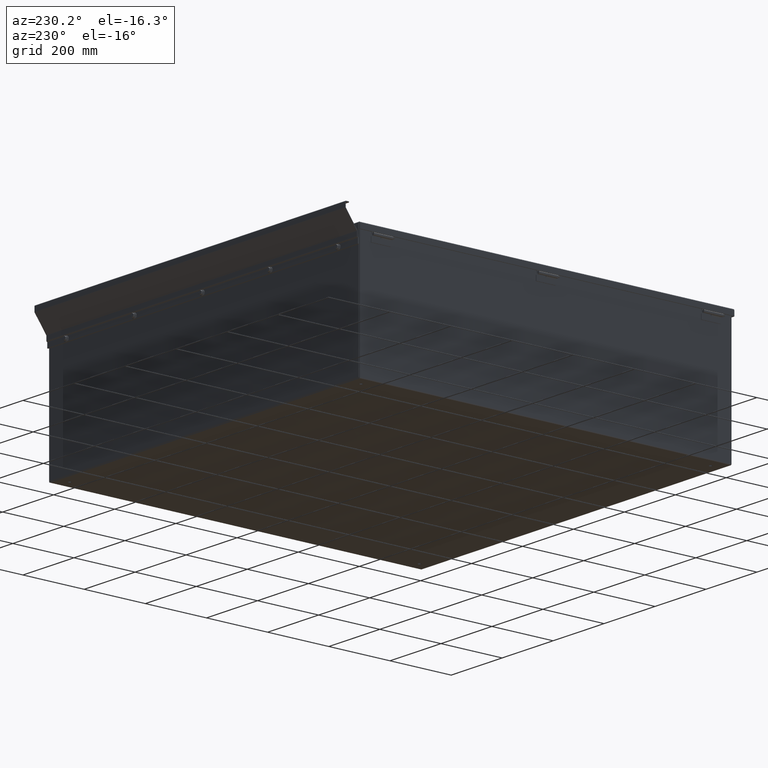
[diagram: clean part render]
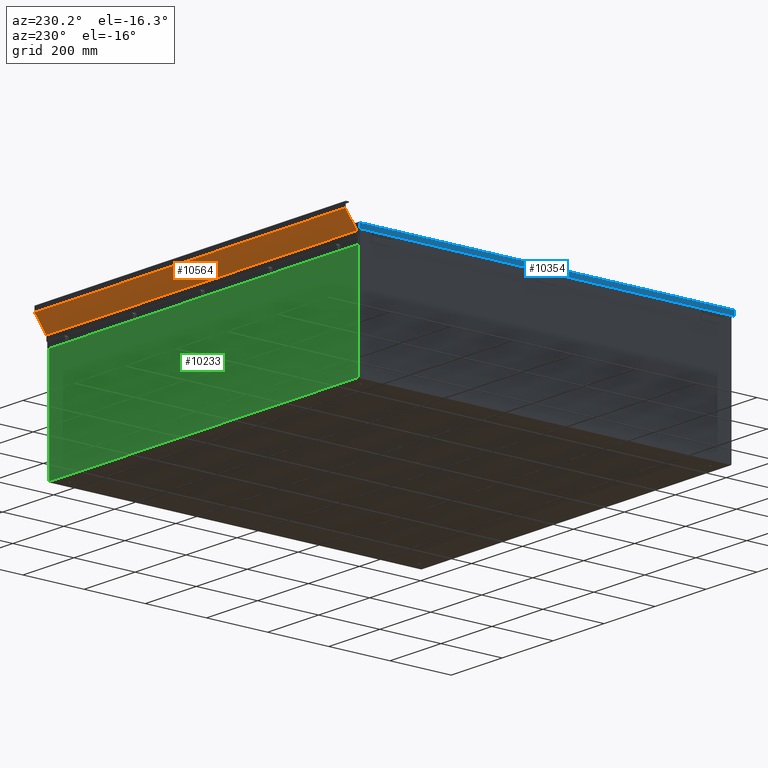
[diagram: same view with three faces highlighted in distinct colors, each labeled with its STEP entity id]
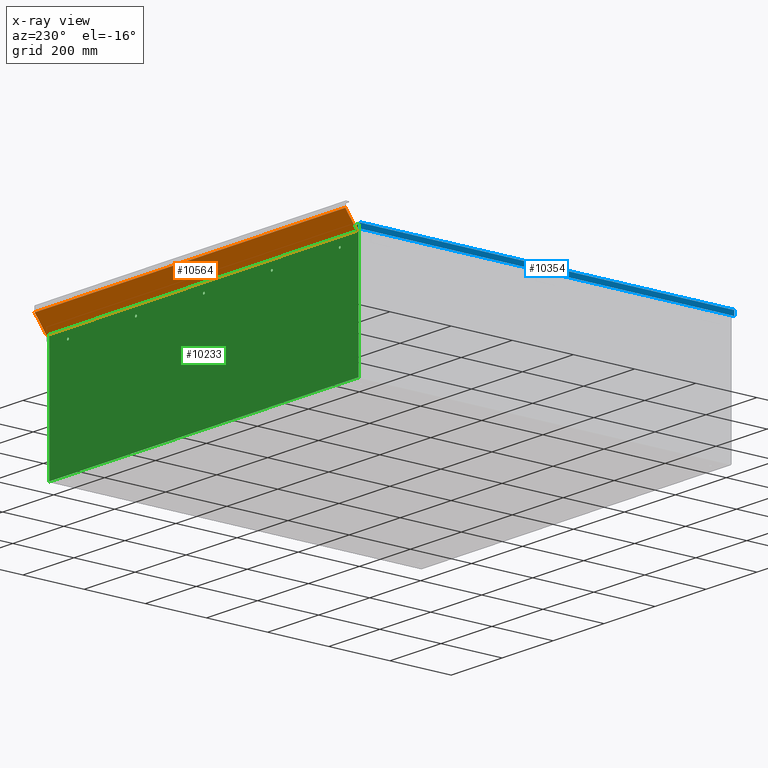
[diagram: x-ray of the same camera — body ghosted, the three highlighted faces saturated]
A machine part, auxiliary view with three faces highlighted in distinct colors.
The next image is the same camera in x-ray (body ghosted, the three faces saturated) — at least one of them is partly hidden behind the body in this view.
Their STEP definitions:

[orange] entity #10564 — the highlighted planar face has unit normal (0, 0.809, -0.5878).
#1122=PLANE($,#11501);
#1613=FACE_OUTER_BOUND($,#2342,.T.);
#2342=EDGE_LOOP($,(#8748,#8749,#8750,#8751));
#3679=LINE($,#17137,#4475);
#3705=LINE($,#17225,#4501);
#3720=LINE($,#17282,#4516);
#3721=LINE($,#17284,#4517);
#4475=VECTOR($,#13767,2.55660440394295);
#4501=VECTOR($,#13835,2.55660440394269);
#4516=VECTOR($,#13910,48.);
#4517=VECTOR($,#13913,48.);
#5201=VERTEX_POINT($,#17134);
#5202=VERTEX_POINT($,#17136);
#5242=VERTEX_POINT($,#17222);
#5243=VERTEX_POINT($,#17224);
#6405=EDGE_CURVE($,#5202,#5201,#3679,.T.);
#6449=EDGE_CURVE($,#5243,#5242,#3705,.T.);
#6476=EDGE_CURVE($,#5242,#5202,#3720,.T.);
#6477=EDGE_CURVE($,#5243,#5201,#3721,.T.);
#8748=ORIENTED_EDGE($,*,*,#6476,.T.);
#8749=ORIENTED_EDGE($,*,*,#6405,.T.);
#8750=ORIENTED_EDGE($,*,*,#6477,.F.);
#8751=ORIENTED_EDGE($,*,*,#6449,.T.);
#10564=ADVANCED_FACE($,(#1613),#1122,.T.);
#11501=AXIS2_PLACEMENT_3D($,#17283,#13911,#13912);
#13767=DIRECTION($,(-7.60050248765501E-017,0.587785252292473,0.809016994374947));
#13835=DIRECTION($,(7.60050248765501E-017,-0.587785252292473,-0.809016994374947));
#13910=DIRECTION($,(-1.,-1.28678251520917E-016,8.6604727863408E-019));
#13911=DIRECTION('center_axis',(-1.04611942105045E-016,0.809016994374947,
-0.587785252292473));
#13912=DIRECTION('ref_axis',(-1.,0.,2.8199664825479E-016));
#13913=DIRECTION($,(-1.,1.7391746430746E-015,5.61654742011281E-015));
#17134=CARTESIAN_POINT('',(-7.44052438222396E-018,0.542399038657958,-0.667066599775276));
#17136=CARTESIAN_POINT('',(1.98464307889726E-016,-0.9603353259257,-2.73540301045896));
#17137=CARTESIAN_POINT($,(2.72972341708475E-017,-0.980436287267742,-2.76306961023424));
#17222=CARTESIAN_POINT('',(48.,-0.960335325925694,-2.73540301045896));
#17224=CARTESIAN_POINT('',(48.,0.542399038657805,-0.667066599775495));
#17225=CARTESIAN_POINT($,(48.,-0.980436287267736,-2.76306961023424));
#17282=CARTESIAN_POINT($,(24.,-0.960335325925696,-2.73540301045896));
#17283=CARTESIAN_POINT('Origin',(-1.72215956130097E-016,0.5625,-0.6394));
#17284=CARTESIAN_POINT($,(-1.76297162242991E-016,0.542399038657958,-0.667066599775276));

[blue] entity #10354 — the highlighted planar face has unit normal (-1, -0, -0).
#973=PLANE($,#11148);
#1416=FACE_OUTER_BOUND($,#2074,.T.);
#2074=EDGE_LOOP($,(#7794,#7795,#7796,#7797));
#3380=LINE($,#16088,#4176);
#3386=LINE($,#16115,#4182);
#3390=LINE($,#16175,#4186);
#3392=LINE($,#16178,#4188);
#4176=VECTOR($,#12856,48.1655029130879);
#4182=VECTOR($,#12866,0.62505);
#4186=VECTOR($,#12872,0.62505);
#4188=VECTOR($,#12876,48.1655029130879);
#4921=VERTEX_POINT($,#16086);
#4922=VERTEX_POINT($,#16087);
#4927=VERTEX_POINT($,#16114);
#4928=VERTEX_POINT($,#16174);
#5977=EDGE_CURVE($,#4921,#4922,#3380,.T.);
#5985=EDGE_CURVE($,#4927,#4922,#3386,.T.);
#5991=EDGE_CURVE($,#4921,#4928,#3390,.T.);
#5993=EDGE_CURVE($,#4928,#4927,#3392,.T.);
#7794=ORIENTED_EDGE($,*,*,#5977,.T.);
#7795=ORIENTED_EDGE($,*,*,#5985,.F.);
#7796=ORIENTED_EDGE($,*,*,#5993,.F.);
#7797=ORIENTED_EDGE($,*,*,#5991,.F.);
#10354=ADVANCED_FACE($,(#1416),#973,.T.);
#11148=AXIS2_PLACEMENT_3D($,#16179,#12877,#12878);
#12856=DIRECTION($,(1.3406546069894E-016,1.,1.08993811467719E-030));
#12866=DIRECTION($,(-2.30314065722459E-014,1.99680416634069E-030,1.));
#12872=DIRECTION($,(2.30314065722459E-014,-1.99680416634069E-030,-1.));
#12876=DIRECTION($,(1.448206362859E-016,1.,-2.86622998698953E-017));
#12877=DIRECTION('center_axis',(-1.,1.3406546069894E-016,-2.30098112043765E-014));
#12878=DIRECTION('ref_axis',(-2.25597318603832E-014,8.67414680778991E-017,
1.));
#16086=CARTESIAN_POINT('',(-12.109375,-24.082751456544,-0.0312500000000051));
#16087=CARTESIAN_POINT('',(-12.109375,24.082751456544,-0.0312500000000051));
#16088=CARTESIAN_POINT($,(-12.109375,-8.2200658122212E-015,-0.0312500000000051));
#16114=CARTESIAN_POINT('',(-12.109375,24.082751456544,-0.656300000000007));
#16115=CARTESIAN_POINT($,(-12.109375,24.082751456544,-0.0312500000000051));
#16174=CARTESIAN_POINT('',(-12.109375,-24.082751456544,-0.656300000000004));
#16175=CARTESIAN_POINT($,(-12.109375,-24.082751456544,-0.0312500000000065));
#16178=CARTESIAN_POINT($,(-12.109375,-24.082751456544,-0.656300000000004));
#16179=CARTESIAN_POINT('Origin',(-12.109375,-5.26485469254245E-015,-0.304421465270819));

[green] entity #10233 — the highlighted planar face has unit normal (0, -1, -0).
#644=FACE_BOUND($,#1921,.T.);
#645=FACE_BOUND($,#1922,.T.);
#646=FACE_BOUND($,#1923,.T.);
#647=FACE_BOUND($,#1924,.T.);
#648=FACE_BOUND($,#1925,.T.);
#649=FACE_BOUND($,#1926,.T.);
#894=PLANE($,#10978);
#1921=EDGE_LOOP($,(#7274));
#1922=EDGE_LOOP($,(#7275));
#1923=EDGE_LOOP($,(#7276));
#1924=EDGE_LOOP($,(#7277));
#1925=EDGE_LOOP($,(#7278));
#1926=EDGE_LOOP($,(#7279,#7280,#7281,#7282));
#2670=CIRCLE($,#10951,0.140625);
#2672=CIRCLE($,#10954,0.140625);
#2674=CIRCLE($,#10957,0.140625);
#2676=CIRCLE($,#10960,0.140625);
#2678=CIRCLE($,#10963,0.140625);
#3183=LINE($,#15346,#3979);
#3198=LINE($,#15382,#3994);
#3201=LINE($,#15388,#3997);
#3202=LINE($,#15389,#3998);
#3979=VECTOR($,#12303,47.8126);
#3994=VECTOR($,#12342,15.78135);
#3997=VECTOR($,#12347,15.78135);
#3998=VECTOR($,#12348,47.8126);
#4747=VERTEX_POINT($,#15317);
#4749=VERTEX_POINT($,#15322);
#4751=VERTEX_POINT($,#15327);
#4753=VERTEX_POINT($,#15332);
#4755=VERTEX_POINT($,#15337);
#4758=VERTEX_POINT($,#15343);
#4759=VERTEX_POINT($,#15345);
#4768=VERTEX_POINT($,#15381);
#4770=VERTEX_POINT($,#15387);
#5703=EDGE_CURVE($,#4747,#4747,#2670,.T.);
#5705=EDGE_CURVE($,#4749,#4749,#2672,.T.);
#5707=EDGE_CURVE($,#4751,#4751,#2674,.T.);
#5709=EDGE_CURVE($,#4753,#4753,#2676,.T.);
#5711=EDGE_CURVE($,#4755,#4755,#2678,.T.);
#5714=EDGE_CURVE($,#4759,#4758,#3183,.T.);
#5732=EDGE_CURVE($,#4759,#4768,#3198,.T.);
#5735=EDGE_CURVE($,#4770,#4758,#3201,.T.);
#5736=EDGE_CURVE($,#4768,#4770,#3202,.T.);
#7274=ORIENTED_EDGE($,*,*,#5703,.T.);
#7275=ORIENTED_EDGE($,*,*,#5705,.T.);
#7276=ORIENTED_EDGE($,*,*,#5707,.T.);
#7277=ORIENTED_EDGE($,*,*,#5709,.T.);
#7278=ORIENTED_EDGE($,*,*,#5711,.T.);
#7279=ORIENTED_EDGE($,*,*,#5714,.T.);
#7280=ORIENTED_EDGE($,*,*,#5735,.F.);
#7281=ORIENTED_EDGE($,*,*,#5736,.F.);
#7282=ORIENTED_EDGE($,*,*,#5732,.F.);
#10233=ADVANCED_FACE($,(#644,#645,#646,#647,#648,#649),#894,.F.);
#10951=AXIS2_PLACEMENT_3D($,#15318,#12272,#12273);
#10954=AXIS2_PLACEMENT_3D($,#15323,#12278,#12279);
#10957=AXIS2_PLACEMENT_3D($,#15328,#12284,#12285);
#10960=AXIS2_PLACEMENT_3D($,#15333,#12290,#12291);
#10963=AXIS2_PLACEMENT_3D($,#15338,#12296,#12297);
#10978=AXIS2_PLACEMENT_3D($,#15386,#12345,#12346);
#12272=DIRECTION('center_axis',(0.,0.,1.));
#12273=DIRECTION('ref_axis',(1.,0.,0.));
#12278=DIRECTION('center_axis',(0.,0.,1.));
#12279=DIRECTION('ref_axis',(1.,0.,0.));
#12284=DIRECTION('center_axis',(0.,0.,1.));
#12285=DIRECTION('ref_axis',(1.,0.,0.));
#12290=DIRECTION('center_axis',(0.,0.,1.));
#12291=DIRECTION('ref_axis',(1.,0.,0.));
#12296=DIRECTION('center_axis',(0.,0.,1.));
#12297=DIRECTION('ref_axis',(1.,0.,0.));
#12303=DIRECTION($,(1.,1.17015696511472E-016,0.));
#12342=DIRECTION($,(3.06161699786838E-016,-1.,0.));
#12345=DIRECTION('center_axis',(0.,0.,1.));
#12346=DIRECTION('ref_axis',(1.,0.,0.));
#12347=DIRECTION($,(-3.53820667760167E-016,1.,0.));
#12348=DIRECTION($,(1.,0.,0.));
#15317=CARTESIAN_POINT('',(44.765675,14.0313,0.));
#15318=CARTESIAN_POINT('Origin',(44.9063,14.0313,0.));
#15322=CARTESIAN_POINT('',(34.265675,14.0313,0.));
#15323=CARTESIAN_POINT('Origin',(34.4063,14.0313,0.));
#15327=CARTESIAN_POINT('',(23.765675,14.0313,0.));
#15328=CARTESIAN_POINT('Origin',(23.9063,14.0313,0.));
#15332=CARTESIAN_POINT('',(13.265675,14.0313,0.));
#15333=CARTESIAN_POINT('Origin',(13.4063,14.0313,0.));
#15337=CARTESIAN_POINT('',(2.765675,14.0313,0.));
#15338=CARTESIAN_POINT('Origin',(2.9063,14.0313,0.));
#15343=CARTESIAN_POINT('',(47.8126,15.78135,0.));
#15345=CARTESIAN_POINT('',(-4.83755575353337E-015,15.78135,0.));
#15346=CARTESIAN_POINT($,(11.95315,15.78135,0.));
#15381=CARTESIAN_POINT('',(0.,0.,0.));
#15382=CARTESIAN_POINT($,(-4.84121249404936E-015,15.8126,0.));
#15386=CARTESIAN_POINT('Origin',(23.9063,7.9063,0.));
#15387=CARTESIAN_POINT('',(47.8126,0.,0.));
#15388=CARTESIAN_POINT($,(47.8126,0.,0.));
#15389=CARTESIAN_POINT($,(0.,0.,0.));